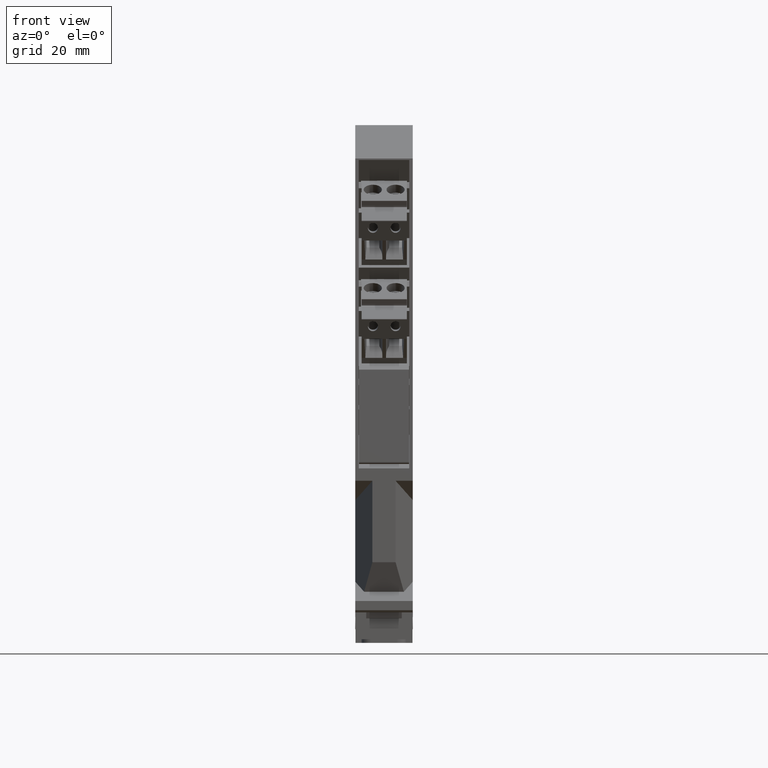
[diagram: clean part render]
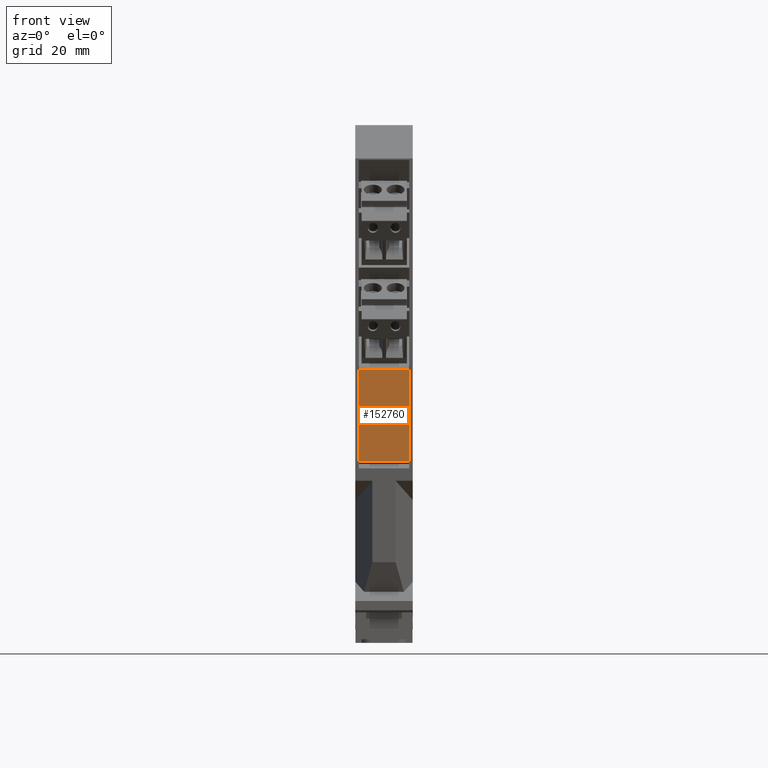
[diagram: same view with one face highlighted and labeled with its STEP entity id]
A machine part, front view. The second image highlights one B-rep face of the part: STEP entity #152760.
In plain terms, the highlighted planar face has unit normal (-0, 1, -0).
Its self-contained STEP definition (entity closure, byte-faithful):
#149310=CARTESIAN_POINT('',(-1.73069447662044E-9,1.7785070759246E-15,
21.106893047632));
#149320=VERTEX_POINT('',#149310);
#150670=CARTESIAN_POINT('',(-2.09039452414572E-11,1.77850707591867E-15,
0.885347224486269));
#150680=VERTEX_POINT('',#150670);
#150710=CARTESIAN_POINT('',(-2.19984030991327E-11,1.77850707591867E-15,
12.048928982531));
#150720=DIRECTION('',(-1.60485479232303E-19,-3.08148791101958E-33,-1.));
#150730=VECTOR('',#150720,1.);
#150740=LINE('',#150710,#150730);
#150750=EDGE_CURVE('',#149320,#150680,#150740,.T.);
#150920=CARTESIAN_POINT('',(-2.19984030991327E-11,11.,12.048928982531));
#150930=DIRECTION('',(-1.60485479232303E-19,-3.08148791101958E-33,-1.));
#150940=VECTOR('',#150930,1.);
#150950=LINE('',#150920,#150940);
#150960=CARTESIAN_POINT('',(-1.73069447662044E-9,11.,21.106893047632));
#150970=VERTEX_POINT('',#150960);
#150980=CARTESIAN_POINT('',(-2.09039452414572E-11,11.,0.885347224486269)
);
#150990=VERTEX_POINT('',#150980);
#151000=EDGE_CURVE('',#150970,#150990,#150950,.T.);
#152550=CARTESIAN_POINT('',(-2.09039452414572E-11,1.77850707591867E-15,
0.885347224486269));
#152560=DIRECTION('',(1.,-3.46944695195361E-18,-1.60485479232303E-19));
#152570=DIRECTION('',(-1.60485479232303E-19,-3.08148791101958E-33,-1.));
#152580=AXIS2_PLACEMENT_3D('',#152550,#152560,#152570);
#152590=PLANE('',#152580);
#152600=ORIENTED_EDGE('',*,*,#150750,.F.);
#152610=CARTESIAN_POINT('',(-2.09039452414572E-11,1.77850707591867E-15,
0.885347224486269));
#152620=DIRECTION('',(3.46944695195361E-18,1.,-3.08204470687633E-33));
#152630=VECTOR('',#152620,1.);
#152640=LINE('',#152610,#152630);
#152650=EDGE_CURVE('',#150680,#150990,#152640,.T.);
#152660=ORIENTED_EDGE('',*,*,#152650,.F.);
#152670=ORIENTED_EDGE('',*,*,#151000,.T.);
#152680=CARTESIAN_POINT('',(-1.73069447662044E-9,1.7785070759246E-15,
21.106893047632));
#152690=DIRECTION('',(3.46944695195361E-18,1.,-3.08204470687633E-33));
#152700=VECTOR('',#152690,1.);
#152710=LINE('',#152680,#152700);
#152720=EDGE_CURVE('',#149320,#150970,#152710,.T.);
#152730=ORIENTED_EDGE('',*,*,#152720,.T.);
#152740=EDGE_LOOP('',(#152730,#152670,#152660,#152600));
#152750=FACE_OUTER_BOUND('',#152740,.T.);
#152760=ADVANCED_FACE('',(#152750),#152590,.F.);